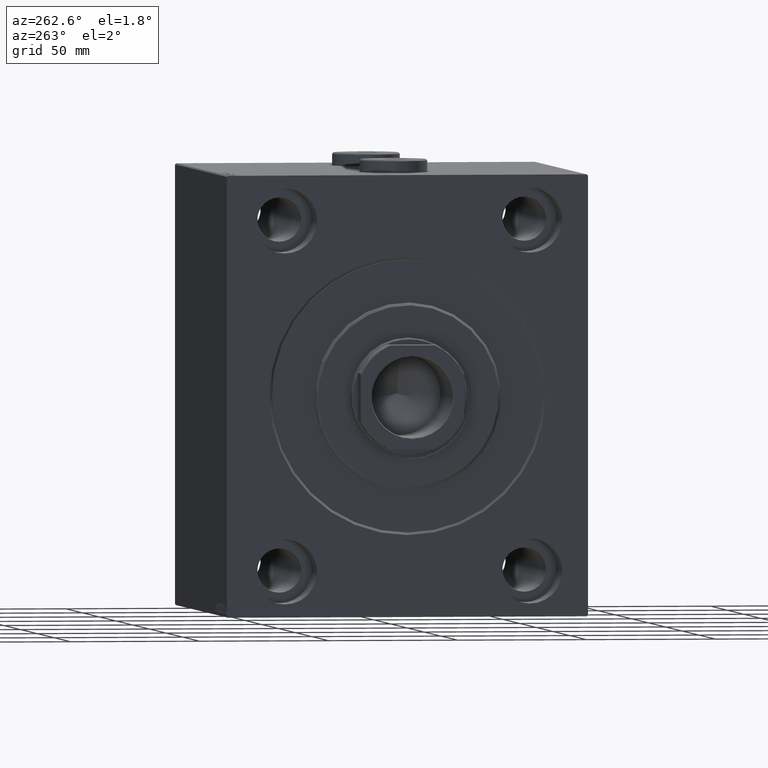
[diagram: clean part render]
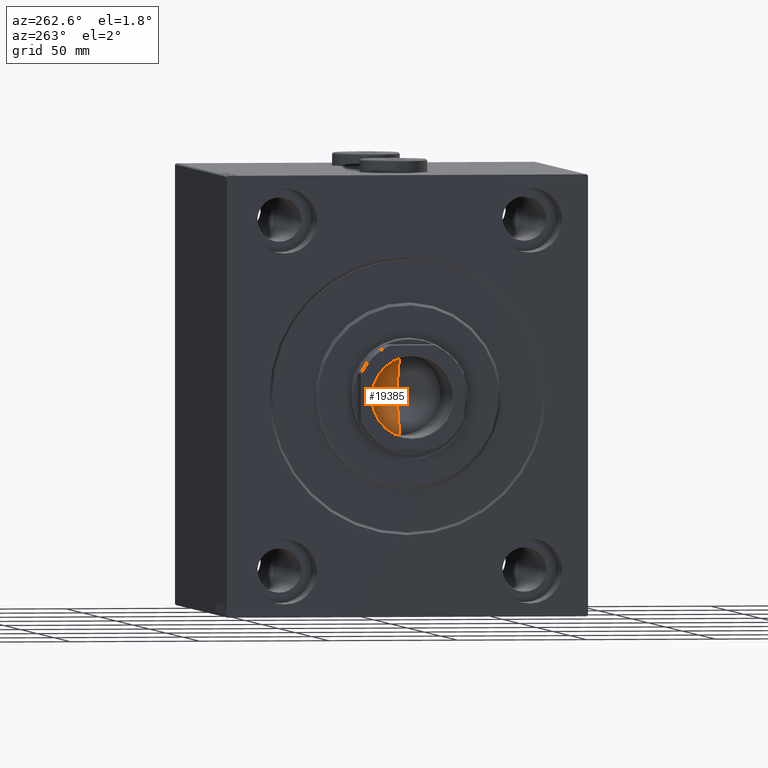
[diagram: same view with one face highlighted and labeled with its STEP entity id]
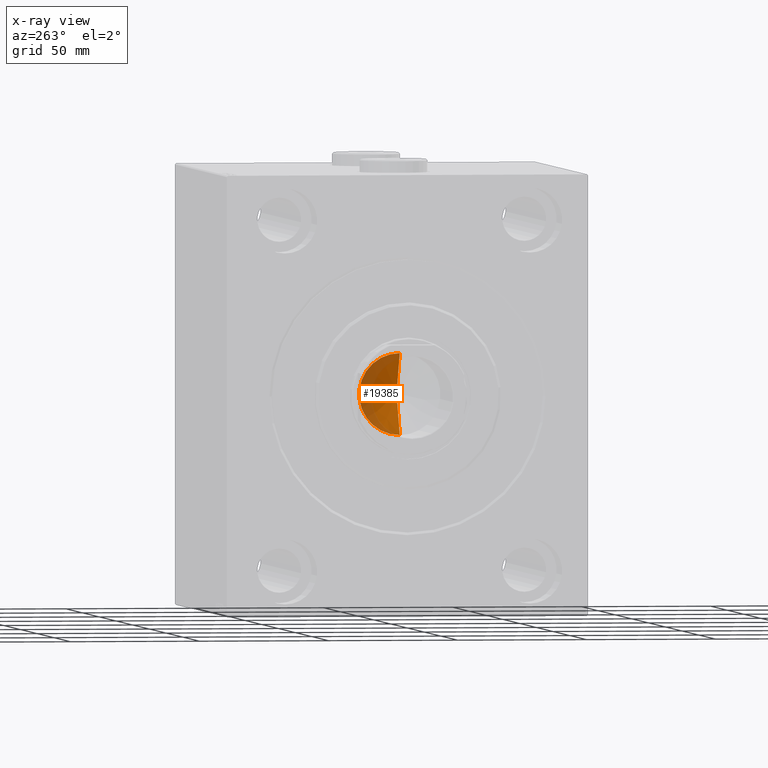
[diagram: x-ray of the same camera — body ghosted, the highlighted face saturated]
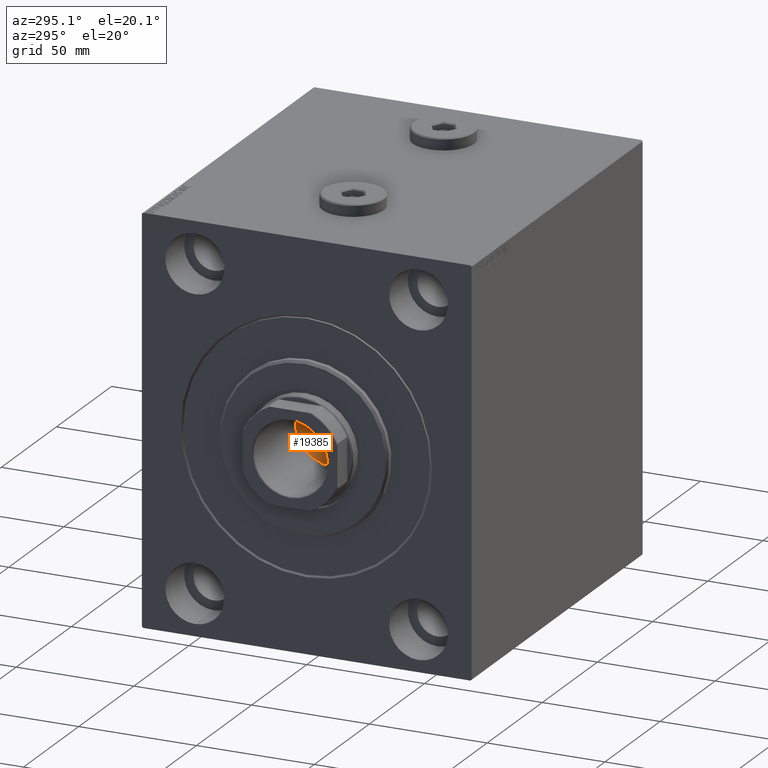
[diagram: same view with one face highlighted and labeled with its STEP entity id]
A machine part, auxiliary view. The second image highlights one B-rep face of the part: STEP entity #19385.
The next image is the same camera in x-ray: the body ghosted, the highlighted face saturated — about 41% of this face is hidden behind the body in this view.
A second angle (auxiliary view) of the same face is appended — the face is thin or edge-on in the first view.
In plain terms, the highlighted conical surface has half-angle 59 deg.
Its self-contained STEP definition (entity closure, byte-faithful):
#264 = CARTESIAN_POINT ( 'NONE',  ( 0.000000000000000000, 0.000000000000000000, 106.0000000000000142 ) ) ;
#2058 = ORIENTED_EDGE ( 'NONE', *, *, #19920, .F. ) ;
#2754 = VERTEX_POINT ( 'NONE', #8855 ) ;
#4247 = AXIS2_PLACEMENT_3D ( 'NONE', #264, #14258, #33210 ) ;
#7806 = CARTESIAN_POINT ( 'NONE',  ( 15.74999999999999289, 0.000000000000000000, 106.0000000000000142 ) ) ;
#8855 = CARTESIAN_POINT ( 'NONE',  ( -1.199718644317817648E-14, 0.000000000000000000, 96.53644525031593560 ) ) ;
#8987 = DIRECTION ( 'NONE',  ( -0.8571673007021120005, 1.049727191138618326E-16, 0.5150380749100547106 ) ) ;
#13960 = LINE ( 'NONE', #24025, #22913 ) ;
#14258 = DIRECTION ( 'NONE',  ( -0.000000000000000000, -0.000000000000000000, 1.000000000000000000 ) ) ;
#19385 = ADVANCED_FACE ( 'NONE', ( #39877 ), #39215, .F. ) ;
#19784 = CARTESIAN_POINT ( 'NONE',  ( -15.74999999999999289, 1.928818708657080556E-15, 106.0000000000000142 ) ) ;
#19920 = EDGE_CURVE ( 'NONE', #2754, #27792, #43817, .T. ) ;
#22913 = VECTOR ( 'NONE', #27907, 1000.000000000000000 ) ;
#23123 = ORIENTED_EDGE ( 'NONE', *, *, #44170, .T. ) ;
#24025 = CARTESIAN_POINT ( 'NONE',  ( 15.74999999999999289, 0.000000000000000000, 106.0000000000000142 ) ) ;
#26621 = EDGE_CURVE ( 'NONE', #30262, #27792, #44504, .T. ) ;
#27792 = VERTEX_POINT ( 'NONE', #36237 ) ;
#27907 = DIRECTION ( 'NONE',  ( 0.8571673007021120005, 0.000000000000000000, 0.5150380749100547106 ) ) ;
#28952 = VECTOR ( 'NONE', #8987, 1000.000000000000000 ) ;
#30262 = VERTEX_POINT ( 'NONE', #7806 ) ;
#30896 = EDGE_LOOP ( 'NONE', ( #2058, #23123, #32429 ) ) ;
#32429 = ORIENTED_EDGE ( 'NONE', *, *, #26621, .T. ) ;
#33210 = DIRECTION ( 'NONE',  ( 1.000000000000000000, 0.000000000000000000, 0.000000000000000000 ) ) ;
#34070 = DIRECTION ( 'NONE',  ( -0.000000000000000000, -0.000000000000000000, 1.000000000000000000 ) ) ;
#36237 = CARTESIAN_POINT ( 'NONE',  ( -15.74999999999999289, 1.928818708657080556E-15, 106.0000000000000142 ) ) ;
#37757 = AXIS2_PLACEMENT_3D ( 'NONE', #44851, #34070, #44617 ) ;
#39215 = CONICAL_SURFACE ( 'NONE', #37757, 15.74999999999999289, 1.029744258676653867 ) ;
#39877 = FACE_OUTER_BOUND ( 'NONE', #30896, .T. ) ;
#43817 = LINE ( 'NONE', #19784, #28952 ) ;
#44170 = EDGE_CURVE ( 'NONE', #2754, #30262, #13960, .T. ) ;
#44504 = CIRCLE ( 'NONE', #4247, 15.74999999999999289 ) ;
#44617 = DIRECTION ( 'NONE',  ( 1.000000000000000000, 0.000000000000000000, 0.000000000000000000 ) ) ;
#44851 = CARTESIAN_POINT ( 'NONE',  ( 0.000000000000000000, 0.000000000000000000, 106.0000000000000142 ) ) ;